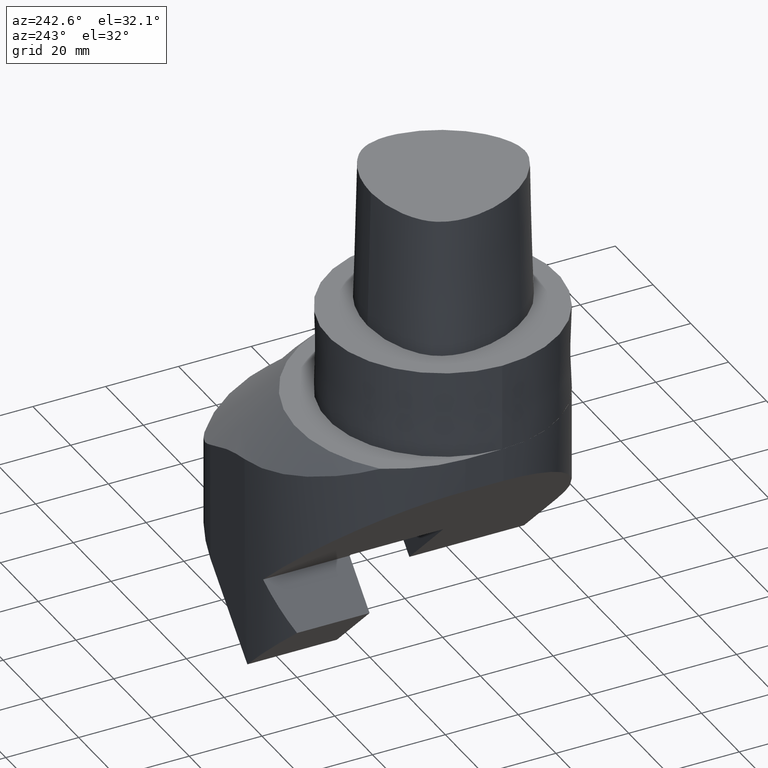
[diagram: clean part render]
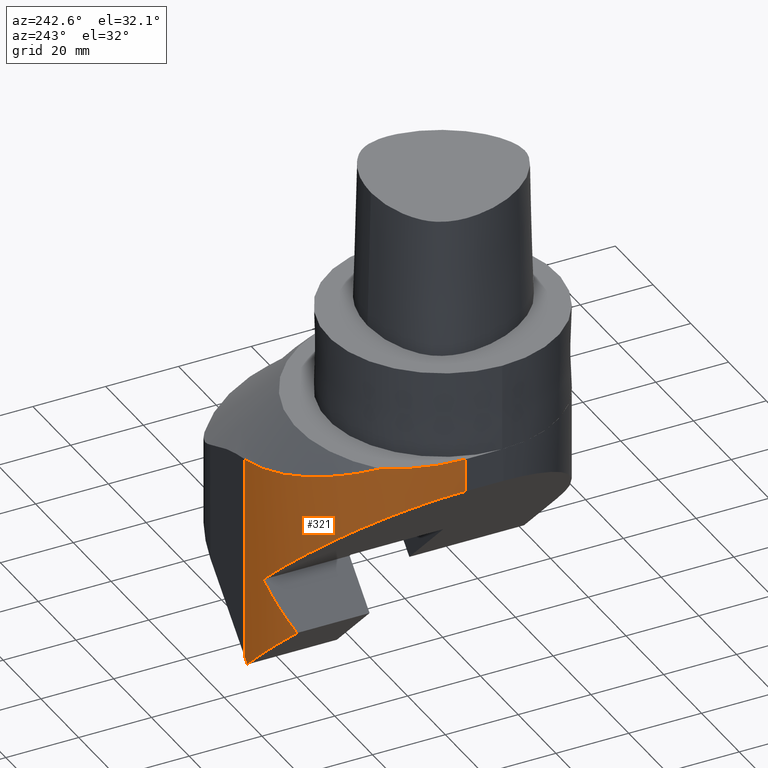
[diagram: same view with one face highlighted and labeled with its STEP entity id]
A machine part, auxiliary view. The second image highlights one B-rep face of the part: STEP entity #321.
In plain terms, the highlighted cylindrical surface (partial cylindrical patch) has radius 40 mm, axis along (-0, 0, 1).
Its self-contained STEP definition (entity closure, byte-faithful):
#142=EDGE_CURVE('Unnamed[1]',#401,#402,#403,.T.);
#208=EDGE_CURVE('Unnamed[1]',#501,#491,#502,.T.);
#221=EDGE_CURVE('Unnamed[1]',#455,#519,#520,.T.);
#234=EDGE_CURVE('Unnamed[1]',#455,#401,#539,.T.);
#299=EDGE_CURVE('Unnamed[1]',#575,#531,#621,.T.);
#301=EDGE_CURVE('Unnamed[1]',#402,#501,#623,.T.);
#309=EDGE_CURVE('Unnamed[1]',#628,#575,#633,.T.);
#321=ADVANCED_FACE('Unnamed[1]',(#648),#649,.T.);
#326=EDGE_CURVE('Unnamed[1]',#628,#519,#655,.T.);
#342=EDGE_CURVE('Unnamed[1]',#531,#491,#672,.T.);
#401=VERTEX_POINT('',#730);
#402=VERTEX_POINT('',#731);
#403=ELLIPSE('',#732,56.5683103012696,40.0);
#455=VERTEX_POINT('',#1834);
#491=VERTEX_POINT('',#1891);
#501=VERTEX_POINT('',#1914);
#502=LINE('',#1915,#1916);
#519=VERTEX_POINT('',#2006);
#520=CIRCLE('',#2007,40.0);
#531=VERTEX_POINT('',#2034);
#539=ELLIPSE('',#2044,56.5687746914378,40.0);
#575=VERTEX_POINT('',#2101);
#621=B_SPLINE_CURVE_WITH_KNOTS('',3,(#4739,#4740,#4741,#4742,#4743,#4744,#4745,#4746,#4747,#4748,#4749,#4750,#4751,#4752,#4753,#4754,#4755,#4756,#4757,#4758,#4759,#4760,#4761,#4762),.UNSPECIFIED.,.F.,.F.,(4,2,2,2,2,2,2,2,2,2,2,4),(95.0869085537319,99.7575260427279,104.428143531724,109.09876102072,113.394871170318,117.690981319916,121.987091469514,126.283201619112,130.57931176871,134.875421918308,139.171532067906,143.467642217504),.UNSPECIFIED.);
#623=ELLIPSE('',#4765,56.5687746914377,40.0);
#628=VERTEX_POINT('',#4773);
#633=LINE('',#4810,#4811);
#648=FACE_OUTER_BOUND('',#4847,.T.);
#649=CYLINDRICAL_SURFACE('',#4848,40.0);
#655=ELLIPSE('',#4856,56.5683103012696,40.0);
#672=B_SPLINE_CURVE_WITH_KNOTS('',3,(#4887,#4888,#4889,#4890,#4891,#4892,#4893,#4894,#4895,#4896,#4897,#4898,#4899,#4900,#4901,#4902,#4903,#4904,#4905,#4906,#4907,#4908,#4909,#4910,#4911,#4912,#4913,#4914,#4915,#4916,#4917,#4918,#4919,#4920,#4921,#4922,#4923,#4924,#4925,#4926,#4927,#4928,#4929,#4930,#4931,#4932,#4933,#4934,#4935,#4936,#4937,#4938,#4939,#4940,#4941,#4942,#4943,#4944,#4945,#4946,#4947,#4948,#4949,#4950,#4951,#4952,#4953,#4954,#4955,#4956,#4957,#4958,#4959,#4960,#4961,#4962,#4963,#4964,#4965,#4966,#4967,#4968,#4969,#4970,#4971,#4972,#4973,#4974,#4975,#4976,#4977,#4978,#4979,#4980,#4981,#4982,#4983,#4984,#4985,#4986,#4987,#4988,#4989,#4990,#4991,#4992,#4993,#4994,#4995,#4996,#4997,#4998,#4999,#5000,#5001,#5002,#5003,#5004,#5005,#5006,#5007,#5008,#5009,#5010,#5011,#5012,#5013,#5014,#5015,#5016,#5017,#5018,#5019,#5020,#5021,#5022,#5023,#5024,#5025,#5026,#5027,#5028,#5029,#5030,#5031,#5032,#5033,#5034,#5035,#5036,#5037,#5038,#5039,#5040,#5041,#5042,#5043,#5044,#5045,#5046,#5047,#5048,#5049,#5050,#5051,#5052,#5053,#5054,#5055,#5056,#5057,#5058,#5059,#5060,#5061,#5062,#5063,#5064,#5065,#5066,#5067,#5068,#5069,#5070,#5071,#5072,#5073,#5074,#5075,#5076,#5077,#5078,#5079,#5080,#5081,#5082,#5083,#5084,#5085,#5086,#5087,#5088,#5089,#5090,#5091,#5092,#5093,#5094,#5095,#5096,#5097,#5098,#5099,#5100,#5101,#5102,#5103,#5104,#5105,#5106,#5107,#5108,#5109,#5110,#5111,#5112,#5113,#5114,#5115,#5116,#5117,#5118,#5119,#5120,#5121,#5122,#5123,#5124,#5125,#5126,#5127,#5128,#5129,#5130,#5131,#5132,#5133,#5134,#5135,#5136,#5137,#5138,#5139,#5140,#5141,#5142,#5143,#5144,#5145,#5146,#5147,#5148,#5149,#5150,#5151,#5152,#5153,#5154,#5155,#5156,#5157,#5158,#5159,#5160,#5161,#5162,#5163,#5164,#5165,#5166,#5167,#5168,#5169,#5170,#5171,#5172,#5173,#5174,#5175,#5176,#5177,#5178,#5179,#5180,#5181,#5182,#5183,#5184,#5185,#5186,#5187,#5188,#5189,#5190,#5191,#5192,#5193,#5194,#5195,#5196,#5197,#5198,#5199,#5200,#5201,#5202,#5203,#5204,#5205,#5206,#5207,#5208,#5209,#5210,#5211,#5212,#5213,#5214,#5215,#5216,#5217,#5218,#5219,#5220,#5221,#5222,#5223,#5224,#5225,#5226,#5227,#5228,#5229,#5230,#5231,#5232,#5233,#5234,#5235,#5236,#5237,#5238,#5239,#5240,#5241,#5242,#5243,#5244,#5245,#5246,#5247,#5248,#5249,#5250,#5251,#5252,#5253,#5254,#5255,#5256,#5257,#5258,#5259,#5260,#5261,#5262,#5263,#5264,#5265,#5266,#5267,#5268,#5269,#5270,#5271,#5272,#5273,#5274,#5275,#5276,#5277,#5278,#5279,#5280,#5281,#5282,#5283,#5284,#5285,#5286,#5287,#5288,#5289,#5290,#5291,#5292,#5293,#5294,#5295,#5296,#5297,#5298,#5299,#5300,#5301,#5302,#5303,#5304,#5305,#5306,#5307,#5308,#5309,#5310,#5311,#5312,#5313,#5314,#5315,#5316,#5317,#5318,#5319,#5320,#5321,#5322,#5323,#5324,#5325,#5326,#5327,#5328,#5329,#5330,#5331,#5332,#5333,#5334,#5335,#5336,#5337,#5338,#5339,#5340,#5341,#5342,#5343,#5344,#5345,#5346,#5347,#5348,#5349,#5350,#5351,#5352,#5353,#5354,#5355,#5356,#5357,#5358,#5359,#5360,#5361,#5362,#5363,#5364,#5365,#5366,#5367,#5368,#5369,#5370,#5371,#5372,#5373,#5374,#5375,#5376,#5377,#5378,#5379,#5380,#5381,#5382,#5383,#5384,#5385,#5386,#5387,#5388,#5389,#5390,#5391,#5392,#5393,#5394,#5395,#5396,#5397,#5398,#5399,#5400,#5401,#5402,#5403,#5404,#5405,#5406,#5407,#5408,#5409,#5410,#5411,#5412,#5413,#5414,#5415,#5416,#5417,#5418,#5419,#5420,#5421,#5422,#5423,#5424,#5425,#5426,#5427,#5428,#5429,#5430,#5431,#5432,#5433,#5434,#5435,#5436,#5437,#5438,#5439,#5440,#5441,#5442,#5443,#5444,#5445,#5446,#5447,#5448,#5449,#5450,#5451,#5452,#5453,#5454,#5455,#5456,#5457,#5458,#5459,#5460,#5461,#5462,#5463,#5464,#5465,#5466,#5467,#5468,#5469,#5470,#5471,#5472,#5473,#5474,#5475,#5476,#5477,#5478,#5479,#5480,#5481,#5482,#5483,#5484,#5485,#5486,#5487,#5488,#5489,#5490,#5491,#5492,#5493,#5494,#5495,#5496,#5497,#5498,#5499,#5500,#5501,#5502,#5503,#5504,#5505,#5506,#5507,#5508,#5509,#5510,#5511,#5512,#5513,#5514),.UNSPECIFIED.,.F.,.F.,(4,2,2,2,2,2,2,2,2,2,2,2,2,2,2,2,2,2,2,2,2,2,2,2,2,2,2,2,2,2,2,2,2,2,2,2,2,2,2,2,2,2,2,2,2,2,2,2,2,2,2,2,2,2,2,2,2,2,2,2,2,2,2,2,2,2,2,2,2,2,2,2,2,2,2,2,2,2,2,2,2,2,2,2,2,2,2,2,2,2,2,2,2,2,2,2,2,2,2,2,2,2,2,2,2,2,2,2,2,2,2,2,2,2,2,2,2,2,2,2,2,2,2,2,2,2,2,2,2,2,2,2,2,2,2,2,2,2,2,2,2,2,2,2,2,2,2,2,2,2,2,2,2,2,2,2,2,2,2,2,2,2,2,2,2,2,2,2,2,2,2,2,2,2,2,2,2,2,2,2,2,2,2,2,2,2,2,2,2,2,2,2,2,2,2,2,2,2,2,2,2,2,2,2,2,2,2,2,2,2,2,2,2,2,2,2,2,2,2,2,2,2,2,2,2,2,2,2,2,2,2,2,2,2,2,2,2,2,2,2,2,2,2,2,2,2,2,2,2,2,2,2,2,2,2,2,2,2,2,2,2,2,2,2,2,2,2,2,2,2,2,2,2,2,2,2,2,2,2,2,2,2,2,2,2,2,2,2,2,2,2,2,2,2,2,2,2,2,2,2,2,2,2,2,2,2,2,2,2,2,2,2,2,4),(14.9342650420142,15.0292086806591,15.1240788807582,15.1714864209168,15.2188755869403,15.2662463740641,15.3135987775587,15.4082484314094,15.5028244948302,15.5973269312451,15.6917557046373,15.7861107795502,15.8332606609977,15.8568286868514,15.8803921027568,15.9275051046253,15.9745996603284,16.0216757656624,16.0687334164583,16.0922553190992,16.1157726065593,16.1627933359141,16.2567794062423,16.3506915771592,16.4445298171501,16.5382940952661,16.5851484811053,16.6319843651357,16.6788017436495,16.7256006129729,16.772380969468,16.8191428095318,16.9126109420147,17.0060049663964,17.0993248551381,17.1459569823083,17.1925705655095,17.2857421026407,17.3788394249438,17.4253602397913,17.471862491516,17.5648113089791,17.6112578530759,17.6576858219976,17.7040952128194,17.7504860226541,17.7736744578389,17.7968582467108,17.8432118860509,17.8895469359562,17.9358633936824,18.0284405372316,18.1209432799998,18.1671667369319,18.2133715859763,18.2595578246426,18.3057254504746,18.3518744610525,18.398004853993,18.4902097928492,18.5362843189363,18.5823402182134,18.6283774884771,18.6743961275597,18.7663775188304,18.8582843602486,18.9042098121977,18.9501166207264,19.0418743149308,19.0877251818668,19.1335573979476,19.2251658854595,19.3166997487734,19.3624386847884,19.3853011541204,19.4081589580282,19.4538605706585,19.4767043771474,19.4995435174549,19.5452078006467,19.5908534169387,19.6820886580121,19.7732492150731,19.8188014765317,19.8643350632102,19.9553462221799,20.0008237775507,20.0462826536162,20.1371443782958,20.1825472103522,20.2279313591612,20.3186436180144,20.363971711865,20.4092811191105,20.4998438852739,20.5903318964778,20.6355478602057,20.6807451333869,20.7033367599586,20.7259237136988,20.7710836042356,20.8162248027471,20.8613473088141,20.9515362563823,21.0416504300142,21.131689827669,21.2216544478886,21.3115442897989,21.4910997506929,21.5807652582922,21.6703559899405,21.7598719476886,21.7822392496477,21.8046018784493,21.8493131185181,21.8940056665751,21.938679523078,22.0279711772758,22.1171880716221,22.1617684784906,22.2063301973146,22.3843903441979,22.4733082547085,22.5621514360727,22.6509198961839,22.7396136435164,22.8282326871307,22.8725141912808,22.916777023171,22.9610211840977,23.0052466753942,23.0936416680378,23.1378111588028,23.1819619856317,23.2260941500397,23.2702076535782,23.3583786977588,23.4464751179478,23.5344969278613,23.6224441417973,23.7103167746344,23.7981148418294,23.8419859117333,23.8858383462961,23.9734873309062,24.0610617997301,24.104821089737,24.1485617575163,24.2359872486735,24.3233382791098,24.410614868334,24.4978170364335,24.5413902125627,24.5849447912134,24.6719981796342,24.7589772106534,24.8024388427279,24.845881893902,24.9327122778702,25.0194683733354,25.1061502044151,25.1927577957978,25.365750461754,25.4521354879017,25.5384463788273,25.6246831620792,25.7108458657743,25.7323749662357,25.7538994389711,25.7969345046408,25.8829491358481,25.9688897752619,26.0547564532721,26.1405492008359,26.2262680494757,26.2690997655932,26.3119130190647,26.3974841666857,26.4829815133402,26.5257025157754,26.5684050806891,26.6537549273147,26.7390310760014,26.8242335622132,26.9093624219769,26.9944176918767,27.0369177362423,27.0793993971219,27.1218626792464,27.1643075873794,27.2067341263215,27.2491423009069,27.3339035883603,27.376256699229,27.3974263743617,27.4080094922181,27.418591463767,27.4609078903004,27.5032059822123,27.5877471942646,27.6722151291743,27.7144216248253,27.7566098168355,27.8409313227588,27.8830646356858,27.9251796663138,28.0093549139876,28.0514151303815,28.0934570863667,28.1774862509149,28.2194734591595,28.2614424294333,28.3453256903564,28.4291360681431,28.5128736093019,28.55471507513,28.5965383494957,28.680130359093,28.7636496748406,28.8470963454101,28.9304704200133,29.0137719483989,29.0970009808525,29.1801575681943,29.2632417617792,29.3047567215424,29.3462536023725,29.3669952645453,29.3877324094517,29.4291931521585,29.512060477929,29.5534670632976,29.5948556096457,29.6362261237413,29.6775786123847,29.7602295516632,29.8428084715362,29.9253154275934,29.9665419312562,30.0077504650566,30.0901136623457,30.2546248194586,30.336772808588,30.4188491784051,30.4598605191981,30.4803594824946,30.5008539760835,30.5827872854991,30.6646491548535,30.7055533131575,30.7464396342849,30.7873081259132,30.828158795752,30.9098067116411,31.0728891089361,31.1543236321522,31.2356871514697,31.3169797312244,31.3575994337956,31.3982014258373,31.4793523214899,31.5604324736061,31.6009460363784,31.6414419381911,31.7223808027614,31.8032491243155,31.8840469706852,31.964774410198,32.0454315116735,32.0655848016522,32.085733700923,32.1260183329716,32.2065349667917,32.2869814719726,32.3673579192908,32.4476643800072,32.5279009258664,32.6080676290981,32.6881645624107,32.8481494921431,32.9280375567552,32.9679555265714,33.0078561371859,33.0876053283077,33.1672851958006,33.2468958157046,33.3264372645277,33.4059096192493,33.4853129573142,33.524988764571,33.5646473469227,33.6439128858681,33.723109643277,33.8022376984459,33.8812971311327,33.960288021552,34.0392104503745,34.1180644987255,34.1968502481845,34.2362175317015,34.2755677712984,34.3542171695167,34.4327985162834,34.5113118949764,34.5505431177763,34.5897573800317,34.668135074488,34.7464450536675,34.7855746719606,34.8246873934058,34.9028621979208,34.9809695439237,35.059009517876,35.1369822066763),.UNSPECIFIED.);
#730=CARTESIAN_POINT('',(-10.2537376326791,45.3315310494283,-75.6757483663436));
#731=CARTESIAN_POINT('',(0.353130321679962,49.1617001755802,-65.0694128945732));
#732=AXIS2_PLACEMENT_3D('',#5606,#5607,#5608);
#1834=CARTESIAN_POINT('',(7.07041229118781,49.9744967028335,-93.0000405105608));
#1891=CARTESIAN_POINT('',(-31.5002544891483,10.1286126705339,-24.0004564914553));
#1914=CARTESIAN_POINT('',(-31.5002544891483,10.128612670523,-33.2157665875351));
#1915=CARTESIAN_POINT('',(-31.5002544891483,10.1286126705274,-28.6081036863499));
#1916=VECTOR('',#5709,1.0);
#2006=CARTESIAN_POINT('',(7.07064791135207,49.9745051257923,-93.0000405105608));
#2007=AXIS2_PLACEMENT_3D('',#5729,#5730,#5731);
#2034=CARTESIAN_POINT('',(-25.8152095870415,30.5547919838836,-24.0005248375701));
#2044=AXIS2_PLACEMENT_3D('',#5746,#5747,#5748);
#2101=CARTESIAN_POINT('',(8.49937467052747,50.0000348892565,-34.717765932408));
#4739=CARTESIAN_POINT('',(12.6633555088333,49.7827274944432,-35.3685838046946));
#4740=CARTESIAN_POINT('',(11.0669185825775,49.9498170055237,-35.1369553292023));
#4741=CARTESIAN_POINT('',(9.46611413643437,50.0198950332737,-34.8841521205092));
#4742=CARTESIAN_POINT('',(6.28940892732024,49.9705089859365,-34.3409032956845));
#4743=CARTESIAN_POINT('',(4.71327030431863,49.8510270853959,-34.0504060181296));
#4744=CARTESIAN_POINT('',(1.61871162743637,49.4346849473664,-33.4379394298172));
#4745=CARTESIAN_POINT('',(0.100296431567017,49.1378071347825,-33.1159575207797));
#4746=CARTESIAN_POINT('',(-2.72881865204078,48.4172250179963,-32.4752957227786));
#4747=CARTESIAN_POINT('',(-4.08383027088326,47.9960887743181,-32.1499692543828));
#4748=CARTESIAN_POINT('',(-6.76262318732627,47.0014902549107,-31.465657217682));
#4749=CARTESIAN_POINT('',(-8.08640945688604,46.4280437287462,-31.1066682217395));
#4750=CARTESIAN_POINT('',(-10.6749968618429,45.1345007261377,-30.359051510404));
#4751=CARTESIAN_POINT('',(-11.9399496267723,44.4143424056119,-29.9703767509183));
#4752=CARTESIAN_POINT('',(-14.3863925553556,42.8382960292152,-29.1681876029276));
#4753=CARTESIAN_POINT('',(-15.5678846964121,41.9824140038431,-28.7546673969361));
#4754=CARTESIAN_POINT('',(-17.8260902214299,40.1509016779628,-27.9085457382897));
#4755=CARTESIAN_POINT('',(-18.9038847668697,39.174394884295,-27.4755331424316));
#4756=CARTESIAN_POINT('',(-20.9389047423236,37.1195655982795,-26.5961232060097));
#4757=CARTESIAN_POINT('',(-21.896126562988,36.0412421504717,-26.1497197456851));
#4758=CARTESIAN_POINT('',(-23.6764585797702,33.8064655595002,-25.2509049076046));
#4759=CARTESIAN_POINT('',(-24.499656461353,32.6498894168318,-24.7984404903657));
#4760=CARTESIAN_POINT('',(-26.0034706816975,30.2856242213671,-23.8956373741648));
#4761=CARTESIAN_POINT('',(-26.6840770298997,29.0779299836944,-23.4452956119785));
#4762=CARTESIAN_POINT('',(-27.2918564221871,27.8599347759695,-23.0005248375701));
#4765=AXIS2_PLACEMENT_3D('',#5836,#5837,#5838);
#4773=CARTESIAN_POINT('',(8.49937467052747,50.0000348892565,-91.5713254802351));
#4810=CARTESIAN_POINT('',(8.49937467052749,50.0000348892565,-225.691961379332));
#4811=VECTOR('',#5841,1.0);
#4847=EDGE_LOOP('',(#5859,#5860,#5861,#5862,#5863,#5864,#5865,#5866,#5867));
#4848=AXIS2_PLACEMENT_3D('',#5868,#5869,#5870);
#4856=AXIS2_PLACEMENT_3D('',#5879,#5880,#5881);
#4887=CARTESIAN_POINT('',(-25.8044227079895,30.5727892246563,-24.000524904721));
#4888=CARTESIAN_POINT('',(-25.8206998092688,30.5456480335653,-24.0005248034407));
#4889=CARTESIAN_POINT('',(-25.8401910850386,30.5130539038498,-24.0005246818801));
#4890=CARTESIAN_POINT('',(-25.87259521257,30.4587102994538,-24.0005244793175));
#4891=CARTESIAN_POINT('',(-25.8919889225591,30.4260921941818,-24.0005243578031));
#4892=CARTESIAN_POINT('',(-25.9161747809887,30.3852968327341,-24.0005242059099));
#4893=CARTESIAN_POINT('',(-25.9258350637832,30.368978900434,-24.0005241451703));
#4894=CARTESIAN_POINT('',(-25.9419152241719,30.3417774472871,-24.0005240439475));
#4895=CARTESIAN_POINT('',(-25.9515511379873,30.3254536470566,-24.0005239832197));
#4896=CARTESIAN_POINT('',(-25.9675906897636,30.2982424489334,-24.0005238820167));
#4897=CARTESIAN_POINT('',(-25.9772022422409,30.2819128226484,-24.0005238213009));
#4898=CARTESIAN_POINT('',(-25.9932011982021,30.2546919492968,-24.000523720118));
#4899=CARTESIAN_POINT('',(-26.002788397057,30.2383565387789,-24.0005236594142));
#4900=CARTESIAN_POINT('',(-26.0267213099228,30.1975187493269,-24.0005235076995));
#4901=CARTESIAN_POINT('',(-26.0458226851314,30.164830730406,-24.0005233863285));
#4902=CARTESIAN_POINT('',(-26.0775771821979,30.1103317606695,-24.0005231840847));
#4903=CARTESIAN_POINT('',(-26.0965812373182,30.0776211053334,-24.0005230627632));
#4904=CARTESIAN_POINT('',(-26.1281735876689,30.0230846856024,-24.0005228606024));
#4905=CARTESIAN_POINT('',(-26.1470803870964,29.9903517264706,-24.0005227393311));
#4906=CARTESIAN_POINT('',(-26.1785106990386,29.9357784103824,-24.0005225372548));
#4907=CARTESIAN_POINT('',(-26.1973203083448,29.9030234791989,-24.0005224160346));
#4908=CARTESIAN_POINT('',(-26.2285886921403,29.8484138189283,-24.0005222140441));
#4909=CARTESIAN_POINT('',(-26.2473011780662,29.815637246558,-24.0005220928758));
#4910=CARTESIAN_POINT('',(-26.2706356625182,29.7746451481425,-24.0005219414187));
#4911=CARTESIAN_POINT('',(-26.2799555019351,29.7582488557408,-24.0005218808542));
#4912=CARTESIAN_POINT('',(-26.291591276427,29.7377481750454,-24.0005218051496));
#4913=CARTESIAN_POINT('',(-26.2962420994352,29.7295480445483,-24.0005217748724));
#4914=CARTESIAN_POINT('',(-26.3039884183754,29.7158800621395,-24.0005217244131));
#4915=CARTESIAN_POINT('',(-26.3086331786448,29.707678615127,-24.0005216941392));
#4916=CARTESIAN_POINT('',(-26.3202363664332,29.6871753624646,-24.000521618466));
#4917=CARTESIAN_POINT('',(-26.3295077039609,29.6707685379195,-24.0005215579282));
#4918=CARTESIAN_POINT('',(-26.3449397312661,29.6434194841012,-24.0005214570432));
#4919=CARTESIAN_POINT('',(-26.3541868309241,29.6270074550916,-24.0005213965189));
#4920=CARTESIAN_POINT('',(-26.3695784691091,29.5996497613416,-24.0005212956563));
#4921=CARTESIAN_POINT('',(-26.3788013397095,29.5832325688645,-24.0005212351456));
#4922=CARTESIAN_POINT('',(-26.394152603521,29.5558663034644,-24.0005211343058));
#4923=CARTESIAN_POINT('',(-26.4033512539475,29.5394439884608,-24.0005210738087));
#4924=CARTESIAN_POINT('',(-26.414835558361,29.5189108982768,-24.0005209981886));
#4925=CARTESIAN_POINT('',(-26.4194258033814,29.5106978333636,-24.0005209679452));
#4926=CARTESIAN_POINT('',(-26.4270711682162,29.4970083362776,-24.0005209175425));
#4927=CARTESIAN_POINT('',(-26.4316553615575,29.4887940060599,-24.0005208873026));
#4928=CARTESIAN_POINT('',(-26.4431071572379,29.4682586187239,-24.0005208117146));
#4929=CARTESIAN_POINT('',(-26.4522573942521,29.4518261812654,-24.0005207512452));
#4930=CARTESIAN_POINT('',(-26.4750982547513,29.4107468902113,-24.0005206001188));
#4931=CARTESIAN_POINT('',(-26.4933261653674,29.3778670437841,-24.000520479222));
#4932=CARTESIAN_POINT('',(-26.5236254038715,29.3230508312824,-24.0005202777744));
#4933=CARTESIAN_POINT('',(-26.5417566157481,29.2901513101417,-24.0005201569342));
#4934=CARTESIAN_POINT('',(-26.5718947517549,29.2353025771289,-24.0005199555818));
#4935=CARTESIAN_POINT('',(-26.5899293396366,29.2023837058624,-24.0005198347991));
#4936=CARTESIAN_POINT('',(-26.6199064986527,29.1475029925576,-24.0005196335431));
#4937=CARTESIAN_POINT('',(-26.6378445384013,29.1145650948399,-24.0005195128187));
#4938=CARTESIAN_POINT('',(-26.6602111828904,29.073372852338,-24.0005193619203));
#4939=CARTESIAN_POINT('',(-26.6691440179571,29.0568968754855,-24.0005193015802));
#4940=CARTESIAN_POINT('',(-26.6840119824677,29.029433041995,-24.0005192010258));
#4941=CARTESIAN_POINT('',(-26.6929207094634,29.0129524294889,-24.0005191407006));
#4942=CARTESIAN_POINT('',(-26.7077485020041,28.9854809034211,-24.0005190401711));
#4943=CARTESIAN_POINT('',(-26.716633130723,28.9689956954616,-24.0005189798609));
#4944=CARTESIAN_POINT('',(-26.7314207676743,28.9415165437692,-24.0005188793563));
#4945=CARTESIAN_POINT('',(-26.7402813079789,28.9250267804993,-24.0005188190612));
#4946=CARTESIAN_POINT('',(-26.7550288058355,28.8975400700389,-24.0005187185818));
#4947=CARTESIAN_POINT('',(-26.7638652676567,28.8810457915433,-24.0005186583018));
#4948=CARTESIAN_POINT('',(-26.7785726430269,28.8535515890747,-24.0005185578478));
#4949=CARTESIAN_POINT('',(-26.7873850363636,28.8370528353805,-24.0005184975831));
#4950=CARTESIAN_POINT('',(-26.8093815851237,28.7958085606478,-24.0005183469702));
#4951=CARTESIAN_POINT('',(-26.8269342130698,28.7627977754625,-24.0005182264868));
#4952=CARTESIAN_POINT('',(-26.8561084343238,28.7077652103602,-24.0005180257328));
#4953=CARTESIAN_POINT('',(-26.8735649099713,28.674737003258,-24.0005179053116));
#4954=CARTESIAN_POINT('',(-26.9025789458733,28.6196756669143,-24.000517704662));
#4955=CARTESIAN_POINT('',(-26.9199393516474,28.5866303560078,-24.0005175843038));
#4956=CARTESIAN_POINT('',(-26.9415841435081,28.5453049621126,-24.0005174338659));
#4957=CARTESIAN_POINT('',(-26.9502283431108,28.5287759978761,-24.0005173737107));
#4958=CARTESIAN_POINT('',(-26.9646153500305,28.5012242510276,-24.0005172734654));
#4959=CARTESIAN_POINT('',(-26.9732355635703,28.4846911297028,-24.0005172133262));
#4960=CARTESIAN_POINT('',(-26.9947518416491,28.443361388105,-24.0005170630283));
#4961=CARTESIAN_POINT('',(-27.0119203592288,28.4102828201625,-24.0005169427984));
#4962=CARTESIAN_POINT('',(-27.0404546757951,28.3551383402358,-24.0005167424695));
#4963=CARTESIAN_POINT('',(-27.0575273771747,28.3220436171703,-24.0005166223049));
#4964=CARTESIAN_POINT('',(-27.0788126417165,28.2806570092428,-24.0005164721104));
#4965=CARTESIAN_POINT('',(-27.0873130853082,28.2641036937746,-24.0005164120529));
#4966=CARTESIAN_POINT('',(-27.1014605526384,28.2365115583659,-24.0005163119708));
#4967=CARTESIAN_POINT('',(-27.1099370747734,28.2199543219127,-24.0005162519298));
#4968=CARTESIAN_POINT('',(-27.1310942625346,28.1785646273395,-24.0005161018783));
#4969=CARTESIAN_POINT('',(-27.1479755925618,28.1454385360618,-24.0005159818467));
#4970=CARTESIAN_POINT('',(-27.1690217146873,28.1040130829152,-24.0005158318193));
#4971=CARTESIAN_POINT('',(-27.1774265386898,28.0874443181197,-24.0005157718288));
#4972=CARTESIAN_POINT('',(-27.1914146769665,28.0598265640548,-24.0005156718587));
#4973=CARTESIAN_POINT('',(-27.1997956238865,28.0432540344823,-24.0005156118852));
#4974=CARTESIAN_POINT('',(-27.2137439763918,28.01563003822,-24.0005155119436));
#4975=CARTESIAN_POINT('',(-27.2221010574835,27.9990537827727,-24.0005154519872));
#4976=CARTESIAN_POINT('',(-27.2360096430283,27.9714236090991,-24.0005153520742));
#4977=CARTESIAN_POINT('',(-27.2443428696104,27.9548436666183,-24.000515292135));
#4978=CARTESIAN_POINT('',(-27.254745539532,27.9341143758442,-24.0005152172142));
#4979=CARTESIAN_POINT('',(-27.2589032105638,27.9258230348307,-24.0005151872511));
#4980=CARTESIAN_POINT('',(-27.2658276956305,27.9120033760353,-24.0005151373161));
#4981=CARTESIAN_POINT('',(-27.2699794073089,27.9037111278014,-24.0005151073573));
#4982=CARTESIAN_POINT('',(-27.2803501990487,27.8829814549453,-24.0005150324733));
#4983=CARTESIAN_POINT('',(-27.2886357508219,27.8663942546806,-24.0005149725687));
#4984=CARTESIAN_POINT('',(-27.3024251494132,27.8387459364831,-24.0005148727423));
#4985=CARTESIAN_POINT('',(-27.310686881014,27.8221551653464,-24.0005148128553));
#4986=CARTESIAN_POINT('',(-27.3244365889494,27.7945009278743,-24.0005147130581));
#4987=CARTESIAN_POINT('',(-27.3326745119501,27.777906624465,-24.0005146531886));
#4988=CARTESIAN_POINT('',(-27.3532354397639,27.7364248122497,-24.0005145035669));
#4989=CARTESIAN_POINT('',(-27.3696399124273,27.7032257508494,-24.0005143838809));
#4990=CARTESIAN_POINT('',(-27.3969014210448,27.6478825231698,-24.0005141844636));
#4991=CARTESIAN_POINT('',(-27.4132107997016,27.6146697943606,-24.0005140648491));
#4992=CARTESIAN_POINT('',(-27.4335422119837,27.57313712776,-24.0005139153458));
#4993=CARTESIAN_POINT('',(-27.441661267764,27.5565257398423,-24.0005138555655));
#4994=CARTESIAN_POINT('',(-27.4551732415498,27.528837333072,-24.0005137559469));
#4995=CARTESIAN_POINT('',(-27.4632685594778,27.512222643196,-24.0005136961848));
#4996=CARTESIAN_POINT('',(-27.4767409801718,27.4845287649834,-24.0005135965964));
#4997=CARTESIAN_POINT('',(-27.4848125722561,27.4679108113199,-24.0005135368525));
#4998=CARTESIAN_POINT('',(-27.4982454599237,27.4402115252322,-24.0005134372946));
#4999=CARTESIAN_POINT('',(-27.5062933382341,27.423590345891,-24.0005133775691));
#5000=CARTESIAN_POINT('',(-27.5196867130424,27.3958857153933,-24.0005132780418));
#5001=CARTESIAN_POINT('',(-27.5277108897099,27.3792613484226,-24.0005132183346));
#5002=CARTESIAN_POINT('',(-27.5410647719284,27.3515514368769,-24.0005131188381));
#5003=CARTESIAN_POINT('',(-27.549065259145,27.3349239202629,-24.0005130591495));
#5004=CARTESIAN_POINT('',(-27.5690328445445,27.2933596142313,-24.0005129099812));
#5005=CARTESIAN_POINT('',(-27.5849628053401,27.2600952719268,-24.0005127906598));
#5006=CARTESIAN_POINT('',(-27.6048201096275,27.2184988008922,-24.0005126415248));
#5007=CARTESIAN_POINT('',(-27.6127496022508,27.2018620626483,-24.0005125818922));
#5008=CARTESIAN_POINT('',(-27.6259457188279,27.1741316584696,-24.0005124825204));
#5009=CARTESIAN_POINT('',(-27.6338515713747,27.1574919219086,-24.0005124229067));
#5010=CARTESIAN_POINT('',(-27.6470082982243,27.1297565519444,-24.0005123235664));
#5011=CARTESIAN_POINT('',(-27.6548905231884,27.1131138547428,-24.0005122639717));
#5012=CARTESIAN_POINT('',(-27.6680078811834,27.0853735817357,-24.000512164663));
#5013=CARTESIAN_POINT('',(-27.6758664911183,27.0687279615079,-24.0005121050874));
#5014=CARTESIAN_POINT('',(-27.6954795357941,27.0271187148269,-24.0005119562024));
#5015=CARTESIAN_POINT('',(-27.7111259666052,26.9938188436969,-24.0005118371086));
#5016=CARTESIAN_POINT('',(-27.7371247256268,26.9383096223557,-24.0005116386834));
#5017=CARTESIAN_POINT('',(-27.752676848409,26.9049985089419,-24.000511519667));
#5018=CARTESIAN_POINT('',(-27.7720620283772,26.8633442784336,-24.0005113709151));
#5019=CARTESIAN_POINT('',(-27.7798027535496,26.8466846050972,-24.0005113114362));
#5020=CARTESIAN_POINT('',(-27.7926843422951,26.8189162255844,-24.000511212321));
#5021=CARTESIAN_POINT('',(-27.8004015290037,26.8022538535927,-24.0005111528617));
#5022=CARTESIAN_POINT('',(-27.8196611711924,26.7606030419994,-24.0005110042682));
#5023=CARTESIAN_POINT('',(-27.8350249865301,26.7272703389952,-24.0005108854088));
#5024=CARTESIAN_POINT('',(-27.854174872044,26.6855894706659,-24.0005107368539));
#5025=CARTESIAN_POINT('',(-27.8618215213892,26.668919225509,-24.000510677454));
#5026=CARTESIAN_POINT('',(-27.8745463605549,26.6411333499499,-24.0005105784708));
#5027=CARTESIAN_POINT('',(-27.8821695236477,26.6244605544615,-24.0005105190909));
#5028=CARTESIAN_POINT('',(-27.9011942122009,26.5827838916167,-24.0005103706964));
#5029=CARTESIAN_POINT('',(-27.9163701377813,26.5494307856108,-24.0005102519968));
#5030=CARTESIAN_POINT('',(-27.9415851556037,26.493834076524,-24.0005100542315));
#5031=CARTESIAN_POINT('',(-27.9566672952389,26.4604712114594,-24.000509935613));
#5032=CARTESIAN_POINT('',(-27.9754652248864,26.4187531604714,-24.0005097873606));
#5033=CARTESIAN_POINT('',(-27.9829711558123,26.4020681659021,-24.0005097280819));
#5034=CARTESIAN_POINT('',(-27.9923398927016,26.3812083327894,-24.0005096539889));
#5035=CARTESIAN_POINT('',(-27.9960840796623,26.3728649602917,-24.0005096243573));
#5036=CARTESIAN_POINT('',(-28.0023195158013,26.3589588568734,-24.0005095749755));
#5037=CARTESIAN_POINT('',(-28.0060578528978,26.3506149065099,-24.000509545349));
#5038=CARTESIAN_POINT('',(-28.0153954316253,26.3297564411153,-24.0005094712968));
#5039=CARTESIAN_POINT('',(-28.022854563654,26.3130668235972,-24.0005094120593));
#5040=CARTESIAN_POINT('',(-28.0321648138279,26.292201254783,-24.0005093380178));
#5041=CARTESIAN_POINT('',(-28.0358856115092,26.2838555982002,-24.0005093084068));
#5042=CARTESIAN_POINT('',(-28.0420820711769,26.269945703176,-24.0005092590594));
#5043=CARTESIAN_POINT('',(-28.0457970257904,26.2615994869664,-24.0005092294536));
#5044=CARTESIAN_POINT('',(-28.0550761618584,26.2407353823965,-24.0005091554532));
#5045=CARTESIAN_POINT('',(-28.0624885493609,26.2240412878414,-24.0005090962572));
#5046=CARTESIAN_POINT('',(-28.0748230641125,26.1962159687232,-24.0005089976146));
#5047=CARTESIAN_POINT('',(-28.0822120998801,26.179519690207,-24.0005089384395));
#5048=CARTESIAN_POINT('',(-28.1006517393622,26.1377848308435,-24.0005087905581));
#5049=CARTESIAN_POINT('',(-28.1153598158863,26.104385855423,-24.0005086722708));
#5050=CARTESIAN_POINT('',(-28.139795538426,26.0487139132055,-24.0005084751957));
#5051=CARTESIAN_POINT('',(-28.1544103737961,26.0153066365539,-24.0005083569931));
#5052=CARTESIAN_POINT('',(-28.1726244147663,25.9735339272926,-24.0005082092627));
#5053=CARTESIAN_POINT('',(-28.179896899347,25.9568272719763,-24.0005081501934));
#5054=CARTESIAN_POINT('',(-28.1919983119811,25.9289811989615,-24.0005080517623));
#5055=CARTESIAN_POINT('',(-28.1992475282043,25.9122725764367,-24.0005079927144));
#5056=CARTESIAN_POINT('',(-28.2173377841905,25.87050715838,-24.0005078451516));
#5057=CARTESIAN_POINT('',(-28.2317664729438,25.837084143705,-24.0005077271203));
#5058=CARTESIAN_POINT('',(-28.2497479308552,25.7952921007561,-24.0005075796051));
#5059=CARTESIAN_POINT('',(-28.2569274267398,25.7785777917473,-24.0005075206219));
#5060=CARTESIAN_POINT('',(-28.2688739053962,25.7507190819748,-24.0005074223348));
#5061=CARTESIAN_POINT('',(-28.2760301895909,25.7340029489704,-24.0005073633734));
#5062=CARTESIAN_POINT('',(-28.2938882272948,25.6922189533745,-24.0005072160276));
#5063=CARTESIAN_POINT('',(-28.3081312227687,25.6587813463758,-24.0005070981704));
#5064=CARTESIAN_POINT('',(-28.3258806662779,25.6169713997678,-24.0005069508737));
#5065=CARTESIAN_POINT('',(-28.3329674014167,25.6002500083643,-24.0005068919782));
#5066=CARTESIAN_POINT('',(-28.3447593267217,25.5723796131333,-24.0005067938374));
#5067=CARTESIAN_POINT('',(-28.3518229076885,25.5556565399104,-24.000506734964));
#5068=CARTESIAN_POINT('',(-28.3694493003216,25.5138553906398,-24.0005065878385));
#5069=CARTESIAN_POINT('',(-28.3835070626549,25.480404328726,-24.0005064701584));
#5070=CARTESIAN_POINT('',(-28.4010250688922,25.4385778981124,-24.0005063230838));
#5071=CARTESIAN_POINT('',(-28.4080192746163,25.4218499914584,-24.0005062642773));
#5072=CARTESIAN_POINT('',(-28.4196570328198,25.3939688551416,-24.0005061662851));
#5073=CARTESIAN_POINT('',(-28.4266281427266,25.377239407803,-24.0005061075011));
#5074=CARTESIAN_POINT('',(-28.4440234718963,25.3354225183199,-24.0005059605995));
#5075=CARTESIAN_POINT('',(-28.4578964679214,25.30195913057,-24.0005058430991));
#5076=CARTESIAN_POINT('',(-28.4809412507962,25.2461819689503,-24.0005056473408));
#5077=CARTESIAN_POINT('',(-28.494722040791,25.2127128390756,-24.0005055299314));
#5078=CARTESIAN_POINT('',(-28.5118939914407,25.1708643214993,-24.0005053831965));
#5079=CARTESIAN_POINT('',(-28.5187498440491,25.1541276962378,-24.0005053245261));
#5080=CARTESIAN_POINT('',(-28.5301570878948,25.1262322037726,-24.0005052267613));
#5081=CARTESIAN_POINT('',(-28.5369899337568,25.109494247568,-24.0005051681139));
#5082=CARTESIAN_POINT('',(-28.5455174992034,25.0885688229004,-24.0005050948115));
#5083=CARTESIAN_POINT('',(-28.5489252990069,25.0801993572614,-24.0005050654965));
#5084=CARTESIAN_POINT('',(-28.5546001763603,25.0662499804446,-24.0005050166429));
#5085=CARTESIAN_POINT('',(-28.5580022301149,25.057880195087,-24.0005049873336));
#5086=CARTESIAN_POINT('',(-28.5664993044574,25.0369575001841,-24.0005049140753));
#5087=CARTESIAN_POINT('',(-28.573286181942,25.0202169862095,-24.0005048554741));
#5088=CARTESIAN_POINT('',(-28.5845785048991,24.9923150992497,-24.0005047578249));
#5089=CARTESIAN_POINT('',(-28.5913424208524,24.9755733583168,-24.000504699247));
#5090=CARTESIAN_POINT('',(-28.6025964872241,24.9476694552145,-24.0005046016366));
#5091=CARTESIAN_POINT('',(-28.6093374568173,24.9309265218532,-24.000504543082));
#5092=CARTESIAN_POINT('',(-28.6261577257199,24.8890763971075,-24.0005043967551));
#5093=CARTESIAN_POINT('',(-28.6395708913024,24.8555870795391,-24.0005042797163));
#5094=CARTESIAN_POINT('',(-28.6618497925527,24.7997678568985,-24.0005040847301));
#5095=CARTESIAN_POINT('',(-28.6751713559379,24.7662741823425,-24.0005039677856));
#5096=CARTESIAN_POINT('',(-28.6972976893223,24.710447926487,-24.0005037729572));
#5097=CARTESIAN_POINT('',(-28.7105277736401,24.6769501688047,-24.0005036561077));
#5098=CARTESIAN_POINT('',(-28.7325017450197,24.6211173352877,-24.0005034614383));
#5099=CARTESIAN_POINT('',(-28.7456404741715,24.5876157672817,-24.0005033446845));
#5100=CARTESIAN_POINT('',(-28.7674622906876,24.5317768098901,-24.0005031501751));
#5101=CARTESIAN_POINT('',(-28.78050978934,24.4982717033019,-24.0005030335178));
#5102=CARTESIAN_POINT('',(-28.8130010821831,24.4145395813581,-24.0005027421166));
#5103=CARTESIAN_POINT('',(-28.838822925129,24.3475197440506,-24.0005025090934));
#5104=CARTESIAN_POINT('',(-28.8708862083559,24.263702851896,-24.0005022179383));
#5105=CARTESIAN_POINT('',(-28.8836607710591,24.2301887493686,-24.0005021015741));
#5106=CARTESIAN_POINT('',(-28.9048760647563,24.1743297988982,-24.0005019077162));
#5107=CARTESIAN_POINT('',(-28.9175599031412,24.1408132341074,-24.000501791451));
#5108=CARTESIAN_POINT('',(-28.9386240964976,24.0849504020887,-24.0005015977587));
#5109=CARTESIAN_POINT('',(-28.9512173389543,24.0514316414453,-24.0005014815932));
#5110=CARTESIAN_POINT('',(-28.9642922515879,24.01650428232,-24.0005013606019));
#5111=CARTESIAN_POINT('',(-28.9674264203963,24.0081242836692,-24.0005013315762));
#5112=CARTESIAN_POINT('',(-28.972645324312,23.9941575212069,-24.0005012832052));
#5113=CARTESIAN_POINT('',(-28.9757738409684,23.9857774060384,-24.0005012541858));
#5114=CARTESIAN_POINT('',(-28.9835872526505,23.9648291648867,-24.0005011816528));
#5115=CARTESIAN_POINT('',(-28.9898273381386,23.9480686001213,-24.0005011236328));
#5116=CARTESIAN_POINT('',(-29.0002086552945,23.9201339708392,-24.000501026954));
#5117=CARTESIAN_POINT('',(-29.0064261565351,23.9033729895251,-24.0005009689593));
#5118=CARTESIAN_POINT('',(-29.0167698468502,23.8754376934527,-24.0005008723226));
#5119=CARTESIAN_POINT('',(-29.0229647801391,23.8586763285227,-24.0005008143533));
#5120=CARTESIAN_POINT('',(-29.0384206831587,23.8167812298784,-24.000500669492));
#5121=CARTESIAN_POINT('',(-29.0507429153788,23.78325746943,-24.0005005536296));
#5122=CARTESIAN_POINT('',(-29.0712048652123,23.7273835246136,-24.0005003606108));
#5123=CARTESIAN_POINT('',(-29.0834370222389,23.6938586232364,-24.0005002448507));
#5124=CARTESIAN_POINT('',(-29.098674164639,23.6519431219465,-24.0005001001846));
#5125=CARTESIAN_POINT('',(-29.1047565041454,23.6351803305806,-24.0005000423432));
#5126=CARTESIAN_POINT('',(-29.114875007101,23.6072421813252,-24.0004999459623));
#5127=CARTESIAN_POINT('',(-29.1209348773509,23.5904792025303,-24.0004998881467));
#5128=CARTESIAN_POINT('',(-29.1461217070451,23.5206770156973,-24.0004996474537));
#5129=CARTESIAN_POINT('',(-29.1701368677945,23.4536237637297,-24.0004994164507));
#5130=CARTESIAN_POINT('',(-29.199944219939,23.3697713941533,-24.0004991278374));
#5131=CARTESIAN_POINT('',(-29.2118174024993,23.3362445287256,-24.0004990124931));
#5132=CARTESIAN_POINT('',(-29.2315314910689,23.2803664887228,-24.0004988203405));
#5133=CARTESIAN_POINT('',(-29.2433152649916,23.2468397768036,-24.0004987051017));
#5134=CARTESIAN_POINT('',(-29.2628804518178,23.1909622059034,-24.0004985131256));
#5135=CARTESIAN_POINT('',(-29.2745749524317,23.1574359031388,-24.000498397993));
#5136=CARTESIAN_POINT('',(-29.2939914636111,23.1015592265167,-24.0004982061943));
#5137=CARTESIAN_POINT('',(-29.3055968269016,23.0680335874709,-24.0004980911686));
#5138=CARTESIAN_POINT('',(-29.3248648896202,23.0121582284965,-24.0004978995485));
#5139=CARTESIAN_POINT('',(-29.3363812522232,22.9786335066489,-24.0004977846302));
#5140=CARTESIAN_POINT('',(-29.3507241562458,22.9367194602978,-24.0004976410196));
#5141=CARTESIAN_POINT('',(-29.3564490032934,22.919957527717,-24.0004975836009));
#5142=CARTESIAN_POINT('',(-29.3659719108823,22.8920212360593,-24.0004974879258));
#5143=CARTESIAN_POINT('',(-29.3716745592965,22.8752596273366,-24.0004974305343));
#5144=CARTESIAN_POINT('',(-29.3811604835385,22.847323901606,-24.0004973349043));
#5145=CARTESIAN_POINT('',(-29.3868409505786,22.8305626481212,-24.00049727754));
#5146=CARTESIAN_POINT('',(-29.3962899202722,22.8026275405603,-24.0004971819554));
#5147=CARTESIAN_POINT('',(-29.401948223237,22.785866673625,-24.0004971246183));
#5148=CARTESIAN_POINT('',(-29.4160633104739,22.7439738585808,-24.00049698134));
#5149=CARTESIAN_POINT('',(-29.4273134972304,22.7104533983536,-24.0004968667478));
#5150=CARTESIAN_POINT('',(-29.4413238770851,22.6685451313779,-24.000496723546));
#5151=CARTESIAN_POINT('',(-29.4469157920066,22.6517856112828,-24.0004966662911));
#5152=CARTESIAN_POINT('',(-29.4562172327946,22.6238534965656,-24.0004965708893));
#5153=CARTESIAN_POINT('',(-29.4617870532252,22.6070944875878,-24.000496513662));
#5154=CARTESIAN_POINT('',(-29.4710516844318,22.5791632505561,-24.0004964183062));
#5155=CARTESIAN_POINT('',(-29.476599427864,22.5624047836673,-24.0004963611065));
#5156=CARTESIAN_POINT('',(-29.4858272786752,22.5344744758839,-24.0004962657968));
#5157=CARTESIAN_POINT('',(-29.4913529626396,22.5177165819878,-24.0004962086249));
#5158=CARTESIAN_POINT('',(-29.5051366973162,22.4758314487325,-24.0004960657599));
#5159=CARTESIAN_POINT('',(-29.5161219607117,22.4423174923379,-24.0004959514995));
#5160=CARTESIAN_POINT('',(-29.5343573345588,22.3864630592493,-24.0004957611584));
#5161=CARTESIAN_POINT('',(-29.5452545713604,22.3529517639878,-24.0004956470098));
#5162=CARTESIAN_POINT('',(-29.5633433521072,22.2971019703207,-24.0004954568555));
#5163=CARTESIAN_POINT('',(-29.5741527039114,22.2635935809707,-24.0004953428193));
#5164=CARTESIAN_POINT('',(-29.5920951280457,22.2077488337792,-24.0004951528529));
#5165=CARTESIAN_POINT('',(-29.6028167370395,22.1742435940274,-24.0004950389297));
#5166=CARTESIAN_POINT('',(-29.6206130420272,22.1184042985467,-24.0004948491522));
#5167=CARTESIAN_POINT('',(-29.6312470509812,22.0849024509883,-24.0004947353426));
#5168=CARTESIAN_POINT('',(-29.6488974752553,22.0290690106342,-24.000494545755));
#5169=CARTESIAN_POINT('',(-29.659444027517,21.995570796773,-24.0004944320596));
#5170=CARTESIAN_POINT('',(-29.6725754020365,21.9536915196206,-24.0004942899819));
#5171=CARTESIAN_POINT('',(-29.6778159251789,21.9369438558697,-24.0004942331773));
#5172=CARTESIAN_POINT('',(-29.6865319498456,21.9090319080857,-24.0004941385269));
#5173=CARTESIAN_POINT('',(-29.691750662837,21.8922852428223,-24.000494081751));
#5174=CARTESIAN_POINT('',(-29.7047674319147,21.850428746248,-24.0004939398775));
#5175=CARTESIAN_POINT('',(-29.7151395031099,21.8169385199182,-24.0004938264124));
#5176=CARTESIAN_POINT('',(-29.7323537253498,21.7611250472245,-24.0004936374005));
#5177=CARTESIAN_POINT('',(-29.7426387732918,21.7276391725431,-24.0004935240514));
#5178=CARTESIAN_POINT('',(-29.7554434748406,21.6857757533848,-24.0004933824077));
#5179=CARTESIAN_POINT('',(-29.7605534089364,21.669034527401,-24.0004933257769));
#5180=CARTESIAN_POINT('',(-29.7690518759757,21.6411334578589,-24.0004932314165));
#5181=CARTESIAN_POINT('',(-29.7741401089053,21.6243934086207,-24.0004931748149));
#5182=CARTESIAN_POINT('',(-29.7868308785693,21.5825536872785,-24.0004930333776));
#5183=CARTESIAN_POINT('',(-29.7969423173188,21.5490772261893,-24.0004929202623));
#5184=CARTESIAN_POINT('',(-29.813722517189,21.4932872863048,-24.000492731835));
#5185=CARTESIAN_POINT('',(-29.8237473710813,21.4598158849695,-24.0004926188375));
#5186=CARTESIAN_POINT('',(-29.8403833854311,21.4040345730979,-24.000492430607));
#5187=CARTESIAN_POINT('',(-29.850321801669,21.370568465363,-24.0004923177279));
#5188=CARTESIAN_POINT('',(-29.8668138762749,21.3147961703356,-24.0004921296951));
#5189=CARTESIAN_POINT('',(-29.8766660025859,21.2813355889518,-24.000492016935));
#5190=CARTESIAN_POINT('',(-29.8889299044236,21.2395044986223,-24.0004918760295));
#5191=CARTESIAN_POINT('',(-29.8938236536148,21.2227763580404,-24.0004918196943));
#5192=CARTESIAN_POINT('',(-29.9019619660254,21.194897340656,-24.0004917258272));
#5193=CARTESIAN_POINT('',(-29.9068341983753,21.178170668442,-24.0004916695219));
#5194=CARTESIAN_POINT('',(-29.918985304638,21.1363647722447,-24.0004915288263));
#5195=CARTESIAN_POINT('',(-29.9286652963443,21.1029159374333,-24.0004914163058));
#5196=CARTESIAN_POINT('',(-29.9447270350158,21.047173007664,-24.0004912288723));
#5197=CARTESIAN_POINT('',(-29.9543211830612,21.0137303908824,-24.0004911164726));
#5198=CARTESIAN_POINT('',(-29.9662628272809,20.9719221769259,-24.0004909760187));
#5199=CARTESIAN_POINT('',(-29.9710277552119,20.9552032769674,-24.0004909198643));
#5200=CARTESIAN_POINT('',(-29.9789514589337,20.9273398037763,-24.000490826299));
#5201=CARTESIAN_POINT('',(-29.9836949821566,20.9106225438728,-24.000490770175));
#5202=CARTESIAN_POINT('',(-29.9955245204019,20.8688404023824,-24.000490629933));
#5203=CARTESIAN_POINT('',(-30.0049474309024,20.8354109056692,-24.0004905177764));
#5204=CARTESIAN_POINT('',(-30.0205810762683,20.7797007748979,-24.0004903309507));
#5205=CARTESIAN_POINT('',(-30.0299185938628,20.7462781780326,-24.0004902189166));
#5206=CARTESIAN_POINT('',(-30.0454100436513,20.690579734792,-24.0004900322954));
#5207=CARTESIAN_POINT('',(-30.0546623195591,20.6571642628544,-24.0004899203842));
#5208=CARTESIAN_POINT('',(-30.0700118261981,20.601477881365,-24.0004897339684));
#5209=CARTESIAN_POINT('',(-30.0791790121117,20.5680697583404,-24.0004896221808));
#5210=CARTESIAN_POINT('',(-30.1019809703485,20.4845945924294,-24.0004893429864));
#5211=CARTESIAN_POINT('',(-30.1200607038336,20.4178012002936,-24.0004891197837));
#5212=CARTESIAN_POINT('',(-30.1424581200325,20.3342933903535,-24.0004888409733));
#5213=CARTESIAN_POINT('',(-30.1513709507528,20.3009086470215,-24.0004887295597));
#5214=CARTESIAN_POINT('',(-30.1661552245745,20.2452742182311,-24.000488543975));
#5215=CARTESIAN_POINT('',(-30.1749835766736,20.2118977087973,-24.0004884326872));
#5216=CARTESIAN_POINT('',(-30.1896271810198,20.1562771854773,-24.0004882473127));
#5217=CARTESIAN_POINT('',(-30.1983712084605,20.1229091284495,-24.0004881361512));
#5218=CARTESIAN_POINT('',(-30.2128744002994,20.0673028738676,-24.0004879509877));
#5219=CARTESIAN_POINT('',(-30.2215342574792,20.0339434866595,-24.000487839953));
#5220=CARTESIAN_POINT('',(-30.2305140495753,19.9991875204449,-24.000487724321));
#5221=CARTESIAN_POINT('',(-30.2326658795702,19.990849056897,-24.0004876965823));
#5222=CARTESIAN_POINT('',(-30.236247888401,19.9769520824876,-24.0004876503577));
#5223=CARTESIAN_POINT('',(-30.2383944698548,19.9686141776964,-24.0004876226269));
#5224=CARTESIAN_POINT('',(-30.2437537887565,19.9477723572725,-24.0004875533174));
#5225=CARTESIAN_POINT('',(-30.2480312160728,19.9310982361292,-24.0004874978798));
#5226=CARTESIAN_POINT('',(-30.258696276842,19.8894247265939,-24.0004873593555));
#5227=CARTESIAN_POINT('',(-30.2671882584018,19.8560833268894,-24.0004872485763));
#5228=CARTESIAN_POINT('',(-30.281271761674,19.800522039893,-24.0004870640512));
#5229=CARTESIAN_POINT('',(-30.2896800387134,19.7671899556846,-24.0004869534005));
#5230=CARTESIAN_POINT('',(-30.3036241644451,19.7116443722635,-24.0004867690901));
#5231=CARTESIAN_POINT('',(-30.3119488930394,19.6783218165899,-24.0004866585685));
#5232=CARTESIAN_POINT('',(-30.3257539016937,19.6227922908975,-24.0004864744736));
#5233=CARTESIAN_POINT('',(-30.3339952383219,19.5894794757043,-24.0004863640815));
#5234=CARTESIAN_POINT('',(-30.3476613910298,19.5339663600734,-24.0004861802031));
#5235=CARTESIAN_POINT('',(-30.3558194925686,19.5006634962144,-24.0004860699411));
#5236=CARTESIAN_POINT('',(-30.3659673474973,19.4590322618633,-24.0004859321656));
#5237=CARTESIAN_POINT('',(-30.3700152330016,19.4423846323674,-24.0004858770836));
#5238=CARTESIAN_POINT('',(-30.3767444116433,19.4146407156986,-24.0004857853075));
#5239=CARTESIAN_POINT('',(-30.3807715473884,19.3979956526066,-24.0004857302583));
#5240=CARTESIAN_POINT('',(-30.3908113016634,19.3563951926057,-24.0004855927057));
#5241=CARTESIAN_POINT('',(-30.3988034052126,19.3231128596094,-24.0004854827056));
#5242=CARTESIAN_POINT('',(-30.4120545633905,19.2676510699642,-24.0004852994817));
#5243=CARTESIAN_POINT('',(-30.4199639048039,19.2343793143148,-24.0004851896133));
#5244=CARTESIAN_POINT('',(-30.4298010414261,19.1927873523098,-24.0004850523307));
#5245=CARTESIAN_POINT('',(-30.4337247246256,19.17615551062,-24.000484997446));
#5246=CARTESIAN_POINT('',(-30.4402469982888,19.1484380364387,-24.0004849059992));
#5247=CARTESIAN_POINT('',(-30.4441500503926,19.1318089164288,-24.0004848511477));
#5248=CARTESIAN_POINT('',(-30.4538798083077,19.0902485100583,-24.00048471409));
#5249=CARTESIAN_POINT('',(-30.4616241010325,19.0569985274835,-24.0004846044865));
#5250=CARTESIAN_POINT('',(-30.4744626379133,19.0015911693552,-24.0004844219251));
#5251=CARTESIAN_POINT('',(-30.4821246448127,18.9683523803304,-24.0004843124549));
#5252=CARTESIAN_POINT('',(-30.4948261714994,18.9129638476875,-24.000484130116));
#5253=CARTESIAN_POINT('',(-30.502406052061,18.8797364554376,-24.0004840207795));
#5254=CARTESIAN_POINT('',(-30.514970834658,18.8243670860814,-24.000483838664));
#5255=CARTESIAN_POINT('',(-30.522468748718,18.7911512927432,-24.0004837294619));
#5256=CARTESIAN_POINT('',(-30.5348970539056,18.7358014226636,-24.0004835475706));
#5257=CARTESIAN_POINT('',(-30.5423131616427,18.7025974292884,-24.0004834385033));
#5258=CARTESIAN_POINT('',(-30.5515342262518,18.6610909292561,-24.0004833022242));
#5259=CARTESIAN_POINT('',(-30.5552116517903,18.6444934250829,-24.0004832477413));
#5260=CARTESIAN_POINT('',(-30.56132369576,18.6168334329303,-24.0004831569647));
#5261=CARTESIAN_POINT('',(-30.564980729944,18.6002389536451,-24.0004831025156));
#5262=CARTESIAN_POINT('',(-30.571058805083,18.5725840236741,-24.0004830117955));
#5263=CARTESIAN_POINT('',(-30.5746954680286,18.5559925941027,-24.0004829573805));
#5264=CARTESIAN_POINT('',(-30.5807396078805,18.5283427676338,-24.000482866717));
#5265=CARTESIAN_POINT('',(-30.5843559197237,18.5117544125353,-24.000482812336));
#5266=CARTESIAN_POINT('',(-30.5903661578656,18.4841097307766,-24.0004827217293));
#5267=CARTESIAN_POINT('',(-30.5939621387631,18.4675244748413,-24.0004826673823));
#5268=CARTESIAN_POINT('',(-30.5999385088057,18.4398849788875,-24.0004825768324));
#5269=CARTESIAN_POINT('',(-30.6035141789336,18.4233028467387,-24.0004825225196));
#5270=CARTESIAN_POINT('',(-30.6124260535728,18.3818604121137,-24.0004823868096));
#5271=CARTESIAN_POINT('',(-30.6195165444461,18.3487056074048,-24.0004822782866));
#5272=CARTESIAN_POINT('',(-30.628330905815,18.3072610881806,-24.0004821426892));
#5273=CARTESIAN_POINT('',(-30.6318457648882,18.2906884744539,-24.0004820884792));
#5274=CARTESIAN_POINT('',(-30.6362271651081,18.2699724733105,-24.0004820207308));
#5275=CARTESIAN_POINT('',(-30.6379770070464,18.2616873736475,-24.0004819936387));
#5276=CARTESIAN_POINT('',(-30.6401612678698,18.2513309429856,-24.000481959777));
#5277=CARTESIAN_POINT('',(-30.6410342930642,18.2471886962064,-24.0004819462342));
#5278=CARTESIAN_POINT('',(-30.6424882821166,18.2402851202244,-24.0004819236646));
#5279=CARTESIAN_POINT('',(-30.6433600438945,18.2361430759344,-24.0004819101239));
#5280=CARTESIAN_POINT('',(-30.6469891633485,18.2188877838394,-24.0004818537181));
#5281=CARTESIAN_POINT('',(-30.6504635829565,18.2023216376034,-24.0004817995769));
#5282=CARTESIAN_POINT('',(-30.6562374520528,18.1747141131609,-24.0004817093704));
#5283=CARTESIAN_POINT('',(-30.6596916823566,18.1581512370306,-24.0004816552637));
#5284=CARTESIAN_POINT('',(-30.6683001732493,18.1167571231295,-24.0004815200695));
#5285=CARTESIAN_POINT('',(-30.6751481492441,18.0836412678574,-24.0004814119599));
#5286=CARTESIAN_POINT('',(-30.6864943014561,18.0284592707666,-24.0004812318928));
#5287=CARTESIAN_POINT('',(-30.6932617641705,17.995356784865,-24.0004811239221));
#5288=CARTESIAN_POINT('',(-30.7016726615073,17.9539781502659,-24.0004809890163));
#5289=CARTESIAN_POINT('',(-30.7050262503128,17.93743198557,-24.0004809350831));
#5290=CARTESIAN_POINT('',(-30.7105988365006,17.9098578836828,-24.0004808452236));
#5291=CARTESIAN_POINT('',(-30.7139323581375,17.8933151329832,-24.0004807913253));
#5292=CARTESIAN_POINT('',(-30.7222392938588,17.8519715092086,-24.0004806566524));
#5293=CARTESIAN_POINT('',(-30.7288462192741,17.8188963349183,-24.0004805489607));
#5294=CARTESIAN_POINT('',(-30.7370566067558,17.7775520795779,-24.0004804144045));
#5295=CARTESIAN_POINT('',(-30.7403300494654,17.7610197130764,-24.0004803606112));
#5296=CARTESIAN_POINT('',(-30.7457691269632,17.7334686870511,-24.000480270985));
#5297=CARTESIAN_POINT('',(-30.7490225842805,17.7169398291278,-24.0004802172268));
#5298=CARTESIAN_POINT('',(-30.757129503881,17.6756310527066,-24.0004800829045));
#5299=CARTESIAN_POINT('',(-30.7635765462049,17.6425839466818,-24.0004799754938));
#5300=CARTESIAN_POINT('',(-30.7715872423487,17.6012750142152,-24.0004798412895));
#5301=CARTESIAN_POINT('',(-30.7747808664746,17.5847568226242,-24.000479787637));
#5302=CARTESIAN_POINT('',(-30.7800869813603,17.5572294994259,-24.0004796982458));
#5303=CARTESIAN_POINT('',(-30.783260702139,17.5407149099213,-24.0004796446287));
#5304=CARTESIAN_POINT('',(-30.791168425326,17.4994419181357,-24.0004795106594));
#5305=CARTESIAN_POINT('',(-30.797456240915,17.4664236284426,-24.0004794035316));
#5306=CARTESIAN_POINT('',(-30.8052680668998,17.4251509517333,-24.0004792696815));
#5307=CARTESIAN_POINT('',(-30.8083822010115,17.4086473074776,-24.0004792161709));
#5308=CARTESIAN_POINT('',(-30.8135559011158,17.3811443069213,-24.0004791270162));
#5309=CARTESIAN_POINT('',(-30.8166502141824,17.3646443571887,-24.0004790735412));
#5310=CARTESIAN_POINT('',(-30.8243595632587,17.3234080766036,-24.0004789399272));
#5311=CARTESIAN_POINT('',(-30.8304888105262,17.2904193427386,-24.0004788330842));
#5312=CARTESIAN_POINT('',(-30.8406383116992,17.2354506192104,-24.0004786551316));
#5313=CARTESIAN_POINT('',(-30.8466885223287,17.202476937898,-24.0004785484317));
#5314=CARTESIAN_POINT('',(-30.8567064335149,17.1475334535589,-24.000478370718));
#5315=CARTESIAN_POINT('',(-30.8626777728396,17.1145750064695,-24.0004782641616));
#5316=CARTESIAN_POINT('',(-30.8700943321169,17.0733775971226,-24.0004781310272));
#5317=CARTESIAN_POINT('',(-30.8730504759074,17.0569041476991,-24.000478077803));
#5318=CARTESIAN_POINT('',(-30.8779609965674,17.0294516233601,-24.0004779891261));
#5319=CARTESIAN_POINT('',(-30.8808974846427,17.0129820501304,-24.000477935938));
#5320=CARTESIAN_POINT('',(-30.8882125622136,16.9718219289064,-24.0004778030417));
#5321=CARTESIAN_POINT('',(-30.8940266558483,16.938894491014,-24.0004776967738));
#5322=CARTESIAN_POINT('',(-30.9036514530842,16.8840285285218,-24.0004775197814));
#5323=CARTESIAN_POINT('',(-30.9093871727797,16.8511168634767,-24.0004774136585));
#5324=CARTESIAN_POINT('',(-30.9188814852745,16.7962773371205,-24.0004772369081));
#5325=CARTESIAN_POINT('',(-30.924538997256,16.7633816223414,-24.0004771309306));
#5326=CARTESIAN_POINT('',(-30.9339031022271,16.7085688269349,-24.0004769544229));
#5327=CARTESIAN_POINT('',(-30.9394825729287,16.6756892387801,-24.0004768485912));
#5328=CARTESIAN_POINT('',(-30.948716747937,16.6209034673724,-24.000476672327));
#5329=CARTESIAN_POINT('',(-30.9542183439964,16.5880401811428,-24.0004765666416));
#5330=CARTESIAN_POINT('',(-30.9633228669375,16.5332817250213,-24.0004763906216));
#5331=CARTESIAN_POINT('',(-30.9687467551903,16.5004349149613,-24.000476285083));
#5332=CARTESIAN_POINT('',(-30.9777219042848,16.4457040636544,-24.000476109308));
#5333=CARTESIAN_POINT('',(-30.9830682517591,16.4128739029541,-24.0004760039166));
#5334=CARTESIAN_POINT('',(-30.9919143055438,16.3581709442338,-24.0004758283872));
#5335=CARTESIAN_POINT('',(-30.9971832794544,16.32535760503,-24.0004757231435));
#5336=CARTESIAN_POINT('',(-31.0037226307526,16.2843425929053,-24.0004755916527));
#5337=CARTESIAN_POINT('',(-31.0063281541776,16.2679422895806,-24.0004755390863));
#5338=CARTESIAN_POINT('',(-31.0106546201293,16.2406120033482,-24.0004754515066));
#5339=CARTESIAN_POINT('',(-31.013240862957,16.2242159694676,-24.0004753989774));
#5340=CARTESIAN_POINT('',(-31.0164619754569,16.2037213735852,-24.0004753333318));
#5341=CARTESIAN_POINT('',(-31.0177478731017,16.1955249649084,-24.0004753070811));
#5342=CARTESIAN_POINT('',(-31.0198870248595,16.1818651792239,-24.0004752633377));
#5343=CARTESIAN_POINT('',(-31.0211681102132,16.1736698458607,-24.0004752370962));
#5344=CARTESIAN_POINT('',(-31.0243644623616,16.1531850894143,-24.0004751715114));
#5345=CARTESIAN_POINT('',(-31.0269122068616,16.1367976580205,-24.0004751190565));
#5346=CARTESIAN_POINT('',(-31.0332561557613,16.0958434051924,-24.0004749879942));
#5347=CARTESIAN_POINT('',(-31.0382940140579,16.0630815527932,-24.000474883196));
#5348=CARTESIAN_POINT('',(-31.0445447230434,16.0221312268899,-24.0004747522631));
#5349=CARTESIAN_POINT('',(-31.0470348773757,16.005756857244,-24.00047469992));
#5350=CARTESIAN_POINT('',(-31.0511691663891,15.9784698991767,-24.0004746127127));
#5351=CARTESIAN_POINT('',(-31.0536401659927,15.9620999253231,-24.000474560407));
#5352=CARTESIAN_POINT('',(-31.0577425479684,15.934820310947,-24.0004744732621));
#5353=CARTESIAN_POINT('',(-31.0601944138568,15.9184547537152,-24.0004744209939));
#5354=CARTESIAN_POINT('',(-31.0642649238252,15.8911825176917,-24.0004743339114));
#5355=CARTESIAN_POINT('',(-31.0666976770215,15.8748213978461,-24.0004742816807));
#5356=CARTESIAN_POINT('',(-31.0727543672814,15.833933069351,-24.0004741511793));
#5357=CARTESIAN_POINT('',(-31.077562621106,15.8012242152389,-24.0004740468306));
#5358=CARTESIAN_POINT('',(-31.085512831402,15.7467244152789,-24.0004738730415));
#5359=CARTESIAN_POINT('',(-31.0902448869454,15.7140335582772,-24.0004737688435));
#5360=CARTESIAN_POINT('',(-31.0980682405197,15.6595638901826,-24.0004735953059));
#5361=CARTESIAN_POINT('',(-31.1027242662974,15.6268911940649,-24.000473491259));
#5362=CARTESIAN_POINT('',(-31.1084981075503,15.5860528489727,-24.0004733612666));
#5363=CARTESIAN_POINT('',(-31.1107976613248,15.5697233667667,-24.0004733092999));
#5364=CARTESIAN_POINT('',(-31.1146144581891,15.5425113923666,-24.0004732227205));
#5365=CARTESIAN_POINT('',(-31.1168950677839,15.5261865113211,-24.0004731707917));
#5366=CARTESIAN_POINT('',(-31.1225716920773,15.4853889676124,-24.0004730410456));
#5367=CARTESIAN_POINT('',(-31.1270761644194,15.4527530804368,-24.0004729373022));
#5368=CARTESIAN_POINT('',(-31.1382380071957,15.3712221277233,-24.0004726782466));
#5369=CARTESIAN_POINT('',(-31.147020560597,15.306006377432,-24.0004724712168));
#5370=CARTESIAN_POINT('',(-31.1578152057518,15.2244983579573,-24.0004722126994));
#5371=CARTESIAN_POINT('',(-31.162093615102,15.1919188866248,-24.0004721094142));
#5372=CARTESIAN_POINT('',(-31.1691617364644,15.1376356632959,-24.0004719374001));
#5373=CARTESIAN_POINT('',(-31.1733651298694,15.1050753137731,-24.0004718342685));
#5374=CARTESIAN_POINT('',(-31.1785736919762,15.0643780268991,-24.0004717054221));
#5375=CARTESIAN_POINT('',(-31.1806473100441,15.0481050763404,-24.0004716539141));
#5376=CARTESIAN_POINT('',(-31.1832279279258,15.0277646917399,-24.0004715895461));
#5377=CARTESIAN_POINT('',(-31.1842577266423,15.0196300304685,-24.0004715638065));
#5378=CARTESIAN_POINT('',(-31.1859701654547,15.0060732712391,-24.0004715209153));
#5379=CARTESIAN_POINT('',(-31.1869952942057,14.9979398221652,-24.0004714951853));
#5380=CARTESIAN_POINT('',(-31.1912555454991,14.9640640570513,-24.0004713880324));
#5381=CARTESIAN_POINT('',(-31.1953094152448,14.9315424197807,-24.0004712852092));
#5382=CARTESIAN_POINT('',(-31.2020037276018,14.8773559759792,-24.0004711139661));
#5383=CARTESIAN_POINT('',(-31.2059830898325,14.8448539271069,-24.0004710112977));
#5384=CARTESIAN_POINT('',(-31.2109118700219,14.8042298214012,-24.0004708830312));
#5385=CARTESIAN_POINT('',(-31.2128736632897,14.7879861951491,-24.0004708317552));
#5386=CARTESIAN_POINT('',(-31.216127843415,14.7609176087414,-24.0004707463275));
#5387=CARTESIAN_POINT('',(-31.2180710734421,14.744678937062,-24.0004706950904));
#5388=CARTESIAN_POINT('',(-31.2212943325175,14.7176186241438,-24.0004706097275));
#5389=CARTESIAN_POINT('',(-31.2232190205259,14.7013849260641,-24.0004705585293));
#5390=CARTESIAN_POINT('',(-31.2264113939258,14.6743329182941,-24.0004704732313));
#5391=CARTESIAN_POINT('',(-31.2283175611427,14.6581042127776,-24.000470422072));
#5392=CARTESIAN_POINT('',(-31.2330588122872,14.6175475468733,-24.0004702942503));
#5393=CARTESIAN_POINT('',(-31.236815670323,14.5851051800556,-24.0004701920487));
#5394=CARTESIAN_POINT('',(-31.2461114078159,14.50405976784,-24.0004699368512));
#5395=CARTESIAN_POINT('',(-31.2534038169307,14.439235700562,-24.0004697329171));
#5396=CARTESIAN_POINT('',(-31.2623392143827,14.3582213311459,-24.0004694782811));
#5397=CARTESIAN_POINT('',(-31.26587509742,14.3258400003739,-24.0004693765498));
#5398=CARTESIAN_POINT('',(-31.2717070896847,14.2718882797253,-24.0004692071288));
#5399=CARTESIAN_POINT('',(-31.2751696545358,14.2395275904749,-24.000469105555));
#5400=CARTESIAN_POINT('',(-31.2808795916354,14.1856103945682,-24.000468936397));
#5401=CARTESIAN_POINT('',(-31.2842690084732,14.1532704932511,-24.0004688349811));
#5402=CARTESIAN_POINT('',(-31.2884610462581,14.1128498632672,-24.0004687082826));
#5403=CARTESIAN_POINT('',(-31.290128376907,14.0966877580077,-24.000468657634));
#5404=CARTESIAN_POINT('',(-31.2928920694009,14.0697552874978,-24.0004685732528));
#5405=CARTESIAN_POINT('',(-31.2945411768903,14.0535984336664,-24.0004685226438));
#5406=CARTESIAN_POINT('',(-31.2986402909758,14.0132216787542,-24.0004683961986));
#5407=CARTESIAN_POINT('',(-31.3018839225112,13.9809237885307,-24.0004682950997));
#5408=CARTESIAN_POINT('',(-31.3072293964394,13.9271116192789,-24.0004681267341));
#5409=CARTESIAN_POINT('',(-31.3104003907761,13.8948349502182,-24.0004680257943));
#5410=CARTESIAN_POINT('',(-31.3143196601866,13.8544936487383,-24.0004678996917));
#5411=CARTESIAN_POINT('',(-31.3158779712135,13.8383633211005,-24.0004678492815));
#5412=CARTESIAN_POINT('',(-31.3184600707979,13.8114839026877,-24.0004677652979));
#5413=CARTESIAN_POINT('',(-31.3200002864159,13.7953589336636,-24.0004677149277));
#5414=CARTESIAN_POINT('',(-31.3238273899841,13.7550620052022,-24.0004675890795));
#5415=CARTESIAN_POINT('',(-31.3268536210191,13.7228282047222,-24.0004674884589));
#5416=CARTESIAN_POINT('',(-31.3318371867625,13.6691232058513,-24.0004673208914));
#5417=CARTESIAN_POINT('',(-31.3347912917563,13.6369110508064,-24.000467220431));
#5418=CARTESIAN_POINT('',(-31.3396547894719,13.5832422440575,-24.0004670531307));
#5419=CARTESIAN_POINT('',(-31.3425369388643,13.5510518738927,-24.0004669528308));
#5420=CARTESIAN_POINT('',(-31.3472806526352,13.4974194908515,-24.0004667857984));
#5421=CARTESIAN_POINT('',(-31.350091016885,13.4652510440251,-24.0004666856594));
#5422=CARTESIAN_POINT('',(-31.3547152308225,13.4116553146359,-24.0004665188954));
#5423=CARTESIAN_POINT('',(-31.3574539804032,13.3795089286233,-24.0004664189177));
#5424=CARTESIAN_POINT('',(-31.3602705244041,13.3460237100866,-24.0004663148244));
#5425=CARTESIAN_POINT('',(-31.3609440417576,13.3379905793215,-24.0004662898552));
#5426=CARTESIAN_POINT('',(-31.3620628511066,13.3246031853794,-24.0004662482483));
#5427=CARTESIAN_POINT('',(-31.3627319058639,13.3165714440724,-24.0004662232892));
#5428=CARTESIAN_POINT('',(-31.3643987851802,13.2964960159524,-24.000466160911));
#5429=CARTESIAN_POINT('',(-31.3657235176515,13.2804367091005,-24.0004661110232));
#5430=CARTESIAN_POINT('',(-31.3690123507109,13.2403041536965,-24.0004659863814));
#5431=CARTESIAN_POINT('',(-31.3716083824082,13.2082022978172,-24.0004658867273));
#5432=CARTESIAN_POINT('',(-31.3758758016765,13.154717892705,-24.0004657207723));
#5433=CARTESIAN_POINT('',(-31.3784007301655,13.1226385041907,-24.0004656212805));
#5434=CARTESIAN_POINT('',(-31.3825497861708,13.069191656182,-24.0004654555963));
#5435=CARTESIAN_POINT('',(-31.3850037819367,13.0371348685992,-24.0004653562672));
#5436=CARTESIAN_POINT('',(-31.3890347588149,12.9837257994953,-24.0004651908544));
#5437=CARTESIAN_POINT('',(-31.3914179923343,12.9516917454398,-24.0004650916883));
#5438=CARTESIAN_POINT('',(-31.3953311742032,12.8983206754268,-24.0004649265476));
#5439=CARTESIAN_POINT('',(-31.3976438159399,12.8663094865264,-24.0004648275449));
#5440=CARTESIAN_POINT('',(-31.4014394868922,12.8129766341777,-24.0004646626767));
#5441=CARTESIAN_POINT('',(-31.4036817072926,12.7809884410935,-24.0004645638377));
#5442=CARTESIAN_POINT('',(-31.407360151388,12.7276940233751,-24.0004643992427));
#5443=CARTESIAN_POINT('',(-31.4095321208763,12.6957289558058,-24.0004643005677));
#5444=CARTESIAN_POINT('',(-31.4148720508683,12.6158800239325,-24.0004640541929));
#5445=CARTESIAN_POINT('',(-31.4190059230789,12.5520197112247,-24.0004638573362));
#5446=CARTESIAN_POINT('',(-31.4240007997735,12.472218211464,-24.0004636115709));
#5447=CARTESIAN_POINT('',(-31.4259630387866,12.4403232890336,-24.0004635133901));
#5448=CARTESIAN_POINT('',(-31.4283728448892,12.4004607176215,-24.0004633907409));
#5449=CARTESIAN_POINT('',(-31.4293278649298,12.3845221158322,-24.0004633417126));
#5450=CARTESIAN_POINT('',(-31.430905083163,12.357962712338,-24.0004632600332));
#5451=CARTESIAN_POINT('',(-31.4318427321111,12.3420300348846,-24.0004632110462));
#5452=CARTESIAN_POINT('',(-31.4341646536712,12.3022144137489,-24.0004630886572));
#5453=CARTESIAN_POINT('',(-31.4359879238891,12.2703668856936,-24.0004629908076));
#5454=CARTESIAN_POINT('',(-31.4389689693323,12.2173075425608,-24.0004628278633));
#5455=CARTESIAN_POINT('',(-31.4407230104778,12.1854838981271,-24.0004627301798));
#5456=CARTESIAN_POINT('',(-31.4435888159465,12.1324644637384,-24.0004625675125));
#5457=CARTESIAN_POINT('',(-31.4452737981678,12.1006648259552,-24.0004624699954));
#5458=CARTESIAN_POINT('',(-31.448024647196,12.0476855045736,-24.0004623076057));
#5459=CARTESIAN_POINT('',(-31.4496407405846,12.0159099955283,-24.0004622102553));
#5460=CARTESIAN_POINT('',(-31.4522769166084,11.9629709898485,-24.0004620481438));
#5461=CARTESIAN_POINT('',(-31.4538242911951,11.931219730688,-24.0004619509604));
#5462=CARTESIAN_POINT('',(-31.4563460775456,11.8783212418411,-24.0004617891275));
#5463=CARTESIAN_POINT('',(-31.457824903296,11.8465943527763,-24.0004616921115));
#5464=CARTESIAN_POINT('',(-31.4596310551852,11.8069424182732,-24.0004615709199));
#5465=CARTESIAN_POINT('',(-31.4603448151549,11.7910881539969,-24.0004615224748));
#5466=CARTESIAN_POINT('',(-31.4615201812857,11.7646694905506,-24.0004614417679));
#5467=CARTESIAN_POINT('',(-31.4622168677565,11.7488213634492,-24.0004613933647));
#5468=CARTESIAN_POINT('',(-31.463936886545,11.7092173226278,-24.0004612724355));
#5469=CARTESIAN_POINT('',(-31.4652791242384,11.6775395306553,-24.0004611757552));
#5470=CARTESIAN_POINT('',(-31.4674594404011,11.6247637835334,-24.0004610147614));
#5471=CARTESIAN_POINT('',(-31.468733638723,11.5931107166981,-24.0004609182494));
#5472=CARTESIAN_POINT('',(-31.4708006973479,11.5403762753956,-24.0004607575364));
#5473=CARTESIAN_POINT('',(-31.4720070259618,11.5087480501903,-24.000460661193));
#5474=CARTESIAN_POINT('',(-31.4739611097513,11.456055108092,-24.0004605007613));
#5475=CARTESIAN_POINT('',(-31.4750997382355,11.4244518400862,-24.0004604045868));
#5476=CARTESIAN_POINT('',(-31.4769411297457,11.3718005890412,-24.0004602444369));
#5477=CARTESIAN_POINT('',(-31.4780122275885,11.340222392885,-24.0004601484316));
#5478=CARTESIAN_POINT('',(-31.4797412092226,11.2876130232122,-24.000459988564));
#5479=CARTESIAN_POINT('',(-31.4807449458186,11.256060012639,-24.0004598927283));
#5480=CARTESIAN_POINT('',(-31.4823617998203,11.2034927131318,-24.0004597331435));
#5481=CARTESIAN_POINT('',(-31.4832983444662,11.1719650009608,-24.0004596374776));
#5482=CARTESIAN_POINT('',(-31.4848033529128,11.1194399588914,-24.0004594781761));
#5483=CARTESIAN_POINT('',(-31.4856728748039,11.0879376570308,-24.0004593826803));
#5484=CARTESIAN_POINT('',(-31.4867181846337,11.0485671870655,-24.0004592633912));
#5485=CARTESIAN_POINT('',(-31.487127864785,11.0328256037903,-24.0004592157072));
#5486=CARTESIAN_POINT('',(-31.4877967489315,11.0065949563396,-24.0004591362695));
#5487=CARTESIAN_POINT('',(-31.4881897367986,10.9908597671909,-24.0004590886281));
#5488=CARTESIAN_POINT('',(-31.4891511506968,10.9515383061659,-24.0004589696039));
#5489=CARTESIAN_POINT('',(-31.489887134237,10.9200871570194,-24.0004588744492));
#5490=CARTESIAN_POINT('',(-31.4910582967223,10.8676899957581,-24.0004587160006));
#5491=CARTESIAN_POINT('',(-31.4917277644435,10.8362645872085,-24.000458621017));
#5492=CARTESIAN_POINT('',(-31.4927882078901,10.7839104173605,-24.0004584628537));
#5493=CARTESIAN_POINT('',(-31.4933913285415,10.7525108576999,-24.0004583680413));
#5494=CARTESIAN_POINT('',(-31.4941039867265,10.7132691278629,-24.0004582496076));
#5495=CARTESIAN_POINT('',(-31.4943807195311,10.6975790789869,-24.0004582022658));
#5496=CARTESIAN_POINT('',(-31.4948281654065,10.6714344125344,-24.0004581233985));
#5497=CARTESIAN_POINT('',(-31.4950883746738,10.6557508660791,-24.0004580760996));
#5498=CARTESIAN_POINT('',(-31.4957181249169,10.6165586063347,-24.0004579579317));
#5499=CARTESIAN_POINT('',(-31.4961890571878,10.5852110657468,-24.0004578634629));
#5500=CARTESIAN_POINT('',(-31.4969190295823,10.5329869426151,-24.0004577061582));
#5501=CARTESIAN_POINT('',(-31.4973241202888,10.5016655704267,-24.0004576118615));
#5502=CARTESIAN_POINT('',(-31.4977895032699,10.4625218043237,-24.000457494073));
#5503=CARTESIAN_POINT('',(-31.497967410572,10.4468709681341,-24.0004574469894));
#5504=CARTESIAN_POINT('',(-31.498250252483,10.4207917219543,-24.0004573685525));
#5505=CARTESIAN_POINT('',(-31.4984117624784,10.4051474670621,-24.000457321512));
#5506=CARTESIAN_POINT('',(-31.4987949756503,10.3660535032275,-24.00045720399));
#5507=CARTESIAN_POINT('',(-31.4990688878176,10.3347847811258,-24.0004571100385));
#5508=CARTESIAN_POINT('',(-31.4994709137511,10.2826922822558,-24.0004569535968));
#5509=CARTESIAN_POINT('',(-31.4996794886674,10.2514500400758,-24.0004568598183));
#5510=CARTESIAN_POINT('',(-31.4999727590749,10.1994017596461,-24.0004567036652));
#5511=CARTESIAN_POINT('',(-31.5001161645624,10.1681860994677,-24.00045661006));
#5512=CARTESIAN_POINT('',(-31.5003009590255,10.1161822068806,-24.0004564541959));
#5513=CARTESIAN_POINT('',(-31.5003793627592,10.0849932299072,-24.0004563607642));
#5514=CARTESIAN_POINT('',(-31.5004176781956,10.0590023618827,-24.0004562829434));
#5606=CARTESIAN_POINT('',(8.49953885724598,10.0000348895935,-56.9230712353368));
#5607=DIRECTION('',(0.707103878742043,-2.86902765602794E-016,-0.707109683619138));
#5608=DIRECTION('',(-0.707109683619138,5.94813012763346E-017,-0.707103878742043));
#5709=DIRECTION('',(-1.22464679914735E-016,2.22044604925031E-016,1.0));
#5729=CARTESIAN_POINT('',(8.49953885724599,10.0000348895935,-93.0000405105608));
#5730=DIRECTION('',(1.22464679914735E-016,-2.22044604925031E-016,-1.0));
#5731=DIRECTION('',(3.06161699786838E-016,1.0,-2.22044604925031E-016));
#5746=CARTESIAN_POINT('',(8.49953885724599,10.0000348895935,-94.4291788088472));
#5747=DIRECTION('',(0.707109683619145,2.71146597926903E-017,0.707103878742037));
#5748=DIRECTION('',(-0.707103878742037,3.73498015779405E-016,0.707109683619145));
#5836=CARTESIAN_POINT('',(8.49953885724598,10.0000348895935,-73.215888307018));
#5837=DIRECTION('',(0.707109683619144,2.71146597926907E-017,0.707103878742038));
#5838=DIRECTION('',(-0.707103878742038,3.73498015779405E-016,0.707109683619144));
#5841=DIRECTION('',(-1.22464679914735E-016,2.22044604925031E-016,1.0));
#5859=ORIENTED_EDGE('',*,*,#208,.T.);
#5860=ORIENTED_EDGE('',*,*,#342,.F.);
#5861=ORIENTED_EDGE('',*,*,#299,.F.);
#5862=ORIENTED_EDGE('',*,*,#309,.F.);
#5863=ORIENTED_EDGE('',*,*,#326,.T.);
#5864=ORIENTED_EDGE('',*,*,#221,.F.);
#5865=ORIENTED_EDGE('',*,*,#234,.T.);
#5866=ORIENTED_EDGE('',*,*,#142,.T.);
#5867=ORIENTED_EDGE('',*,*,#301,.T.);
#5868=CARTESIAN_POINT('',(8.499538857246,10.0000348895935,-225.691961379332));
#5869=DIRECTION('',(-1.22464679914735E-016,2.22044604925031E-016,1.0));
#5870=DIRECTION('',(3.06161699786838E-016,1.0,-2.22044604925031E-016));
#5879=CARTESIAN_POINT('',(8.49953885724599,10.0000348895935,-91.5711612948645));
#5880=DIRECTION('',(-0.707103878742043,2.86902765602794E-016,0.707109683619139));
#5881=DIRECTION('',(-0.707109683619139,5.94813012763349E-017,-0.707103878742043));